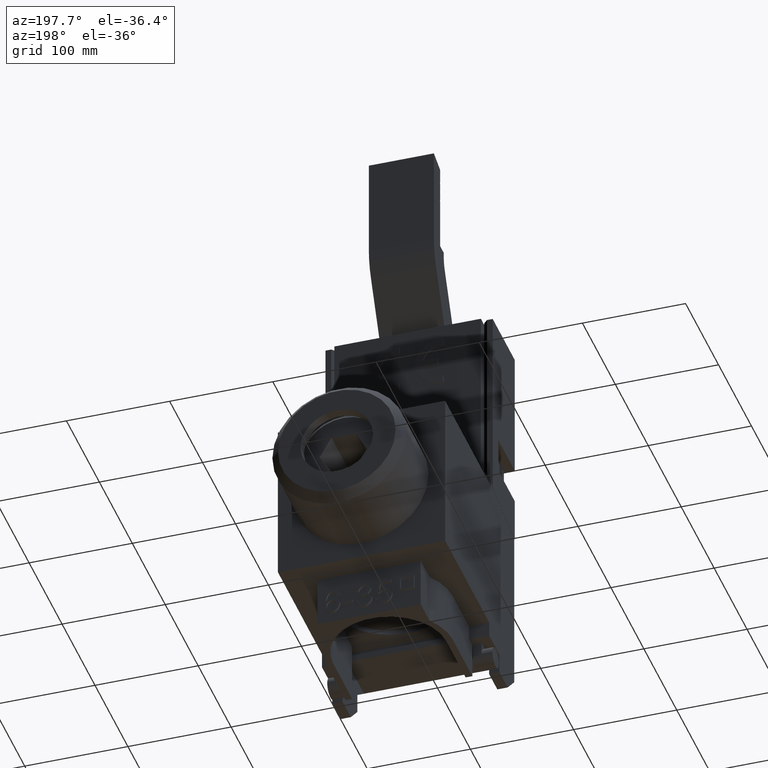
[diagram: clean part render]
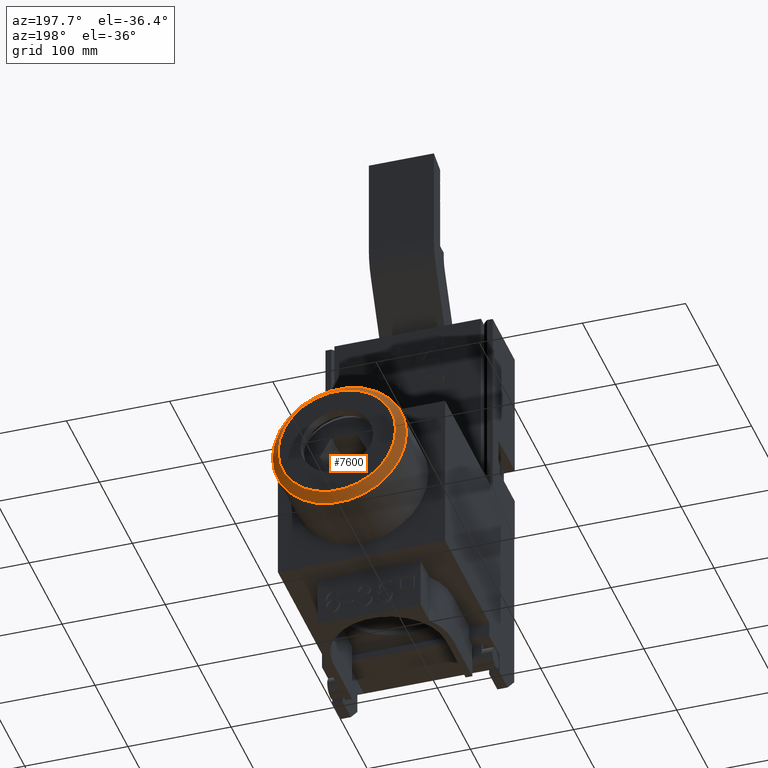
[diagram: same view with one face highlighted and labeled with its STEP entity id]
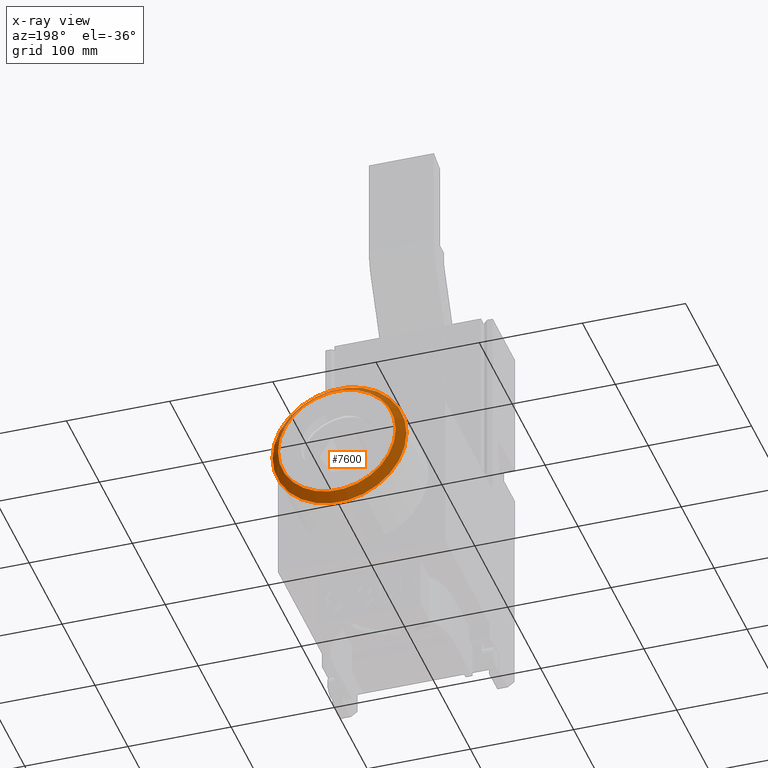
[diagram: x-ray of the same camera — body ghosted, the highlighted face saturated]
A machine part, auxiliary view. The second image highlights one B-rep face of the part: STEP entity #7600.
The next image is the same camera in x-ray: the body ghosted, the highlighted face saturated — about 0% of this face is hidden behind the body in this view.
In plain terms, the highlighted conical surface has half-angle 45 deg.
Its self-contained STEP definition (entity closure, byte-faithful):
#7573=CARTESIAN_POINT('',(-170.59263777450514,309.56537027460962,130.00000000000006));
#7574=DIRECTION('',(0.0,-1.0,0.0));
#7575=DIRECTION('',(-1.0,0.0,0.0));
#7576=AXIS2_PLACEMENT_3D('',#7573,#7574,#7575);
#7577=CONICAL_SURFACE('',#7576,61.0,45.000000000000014);
#7578=CARTESIAN_POINT('',(-113.59263777450516,313.56537027460956,130.00000000000006));
#7579=VERTEX_POINT('',#7578);
#7580=CARTESIAN_POINT('',(-170.59263777450514,313.56537027460956,130.00000000000011));
#7581=DIRECTION('',(0.0,-1.0,0.0));
#7582=DIRECTION('',(-1.0,0.0,0.0));
#7583=AXIS2_PLACEMENT_3D('',#7580,#7581,#7582);
#7584=CIRCLE('',#7583,56.999999999999972);
#7585=EDGE_CURVE('',#7579,#7579,#7584,.T.);
#7586=ORIENTED_EDGE('',*,*,#7585,.T.);
#7587=EDGE_LOOP('',(#7586));
#7588=FACE_OUTER_BOUND('',#7587,.T.);
#7589=CARTESIAN_POINT('',(-105.59263777450514,305.56537027460956,130.00000000000006));
#7590=VERTEX_POINT('',#7589);
#7591=CARTESIAN_POINT('',(-170.59263777450514,305.56537027460956,130.00000000000006));
#7592=DIRECTION('',(0.0,1.0,0.0));
#7593=DIRECTION('',(-1.0,0.0,0.0));
#7594=AXIS2_PLACEMENT_3D('',#7591,#7592,#7593);
#7595=CIRCLE('',#7594,65.0);
#7596=EDGE_CURVE('',#7590,#7590,#7595,.T.);
#7597=ORIENTED_EDGE('',*,*,#7596,.T.);
#7598=EDGE_LOOP('',(#7597));
#7599=FACE_BOUND('',#7598,.T.);
#7600=ADVANCED_FACE('',(#7588,#7599),#7577,.T.);